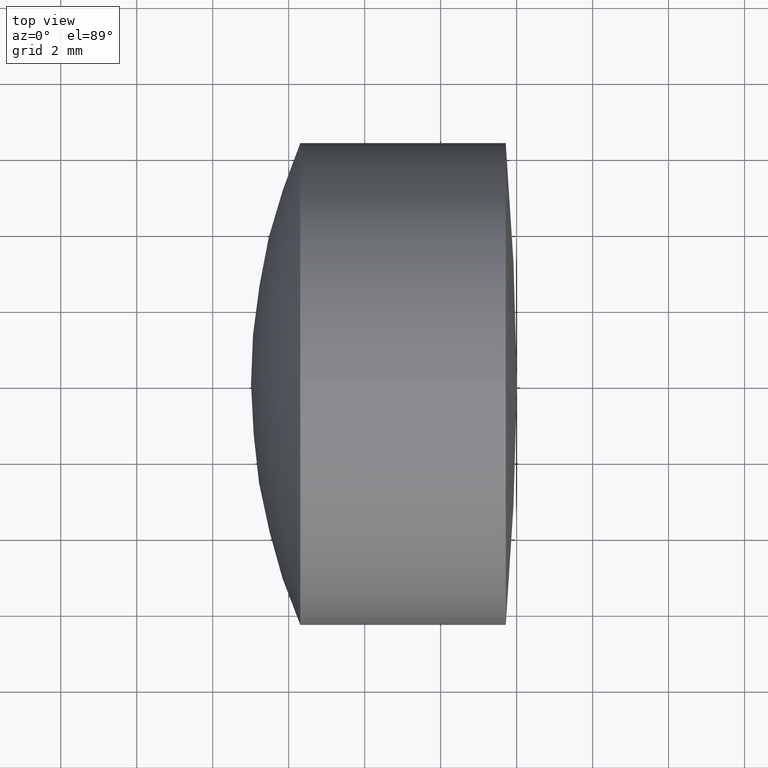
[diagram: clean part render]
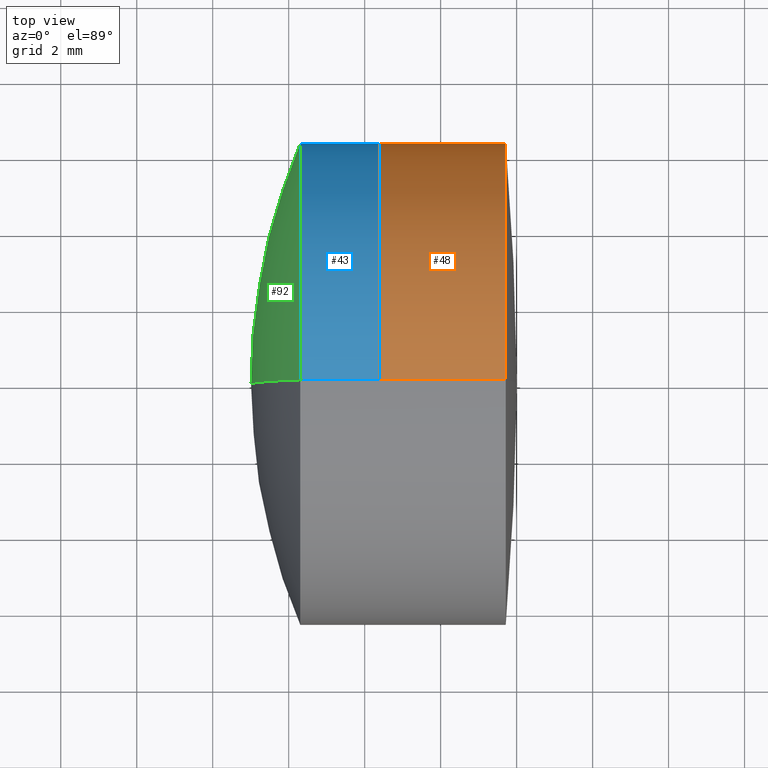
[diagram: same view with three faces highlighted in distinct colors, each labeled with its STEP entity id]
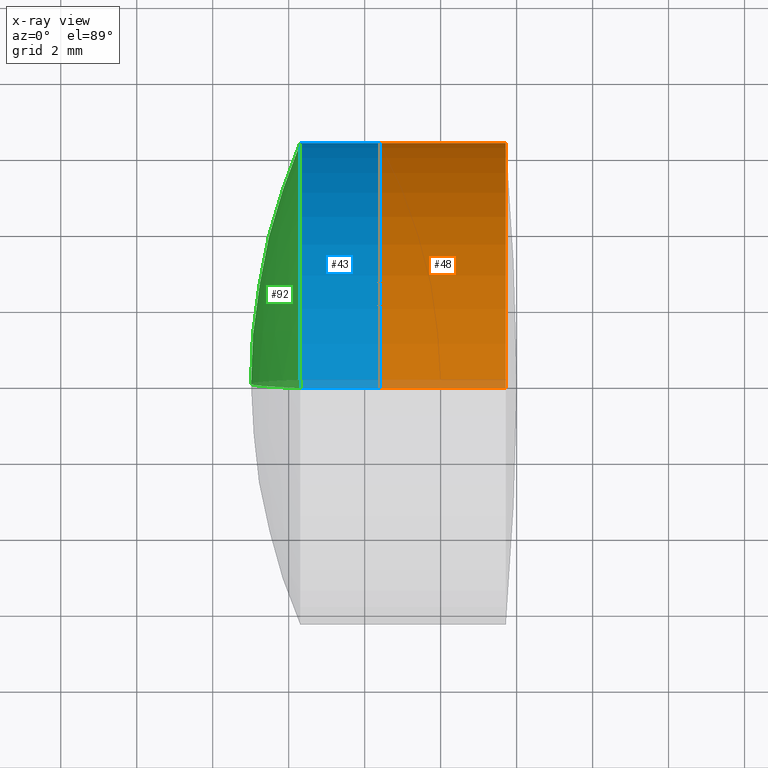
[diagram: x-ray of the same camera — body ghosted, the three highlighted faces saturated]
A machine part, top view with three faces highlighted in distinct colors.
The next image is the same camera in x-ray (body ghosted, the three faces saturated) — at least one of them is partly hidden behind the body in this view.
Their STEP definitions:

[orange] entity #48 — the highlighted cylindrical surface (partial cylindrical patch) has radius 6.35 mm, axis along (-1, -0, -0).
#4 = DIRECTION ( 'NONE',  ( -1.000000000000000000, -0.0000000000000000000, -0.0000000000000000000 ) ) ;
#18 = CARTESIAN_POINT ( 'NONE',  ( 275.7139967868120000, 0.0000000000000000000, 0.0000000000000000000 ) ) ;
#19 = DIRECTION ( 'NONE',  ( 0.0000000000000000000, 0.0000000000000000000, 1.000000000000000000 ) ) ;
#20 = ORIENTED_EDGE ( 'NONE', *, *, #53, .T. ) ;
#37 = LINE ( 'NONE', #130, #73 ) ;
#39 = VERTEX_POINT ( 'NONE', #184 ) ;
#44 = DIRECTION ( 'NONE',  ( -1.000000000000000000, -0.0000000000000000000, -0.0000000000000000000 ) ) ;
#48 = ADVANCED_FACE ( 'NONE', ( #199 ), #131, .T. ) ;
#53 = EDGE_CURVE ( 'NONE', #122, #132, #98, .T. ) ;
#57 = CARTESIAN_POINT ( 'NONE',  ( -0.5519199926577972300, 7.776507174585686200E-016, -6.349999999999994300 ) ) ;
#66 = VERTEX_POINT ( 'NONE', #179 ) ;
#70 = DIRECTION ( 'NONE',  ( -1.000000000000000000, -0.0000000000000000000, -0.0000000000000000000 ) ) ;
#73 = VECTOR ( 'NONE', #114, 1000.000000000000000 ) ;
#82 = EDGE_CURVE ( 'NONE', #66, #39, #37, .T. ) ;
#96 = AXIS2_PLACEMENT_3D ( 'NONE', #166, #4, #193 ) ;
#98 = LINE ( 'NONE', #57, #287 ) ;
#114 = DIRECTION ( 'NONE',  ( -1.000000000000000000, -0.0000000000000000000, -0.0000000000000000000 ) ) ;
#122 = VERTEX_POINT ( 'NONE', #206 ) ;
#130 = CARTESIAN_POINT ( 'NONE',  ( -0.5519199926577972300, 0.0000000000000000000, 6.349999999999994300 ) ) ;
#131 = CYLINDRICAL_SURFACE ( 'NONE', #212, 6.349999999999994300 ) ;
#132 = VERTEX_POINT ( 'NONE', #278 ) ;
#136 = AXIS2_PLACEMENT_3D ( 'NONE', #18, #142, #318 ) ;
#137 = EDGE_LOOP ( 'NONE', ( #230, #20, #231, #172 ) ) ;
#142 = DIRECTION ( 'NONE',  ( -1.000000000000000000, -0.0000000000000000000, -0.0000000000000000000 ) ) ;
#166 = CARTESIAN_POINT ( 'NONE',  ( 272.3951664723072100, 0.0000000000000000000, 0.0000000000000000000 ) ) ;
#172 = ORIENTED_EDGE ( 'NONE', *, *, #82, .F. ) ;
#179 = CARTESIAN_POINT ( 'NONE',  ( 275.7139967868120000, 0.0000000000000000000, 6.349999999999993400 ) ) ;
#184 = CARTESIAN_POINT ( 'NONE',  ( 272.3951664723072100, 0.0000000000000000000, 6.349999999999992500 ) ) ;
#190 = CIRCLE ( 'NONE', #136, 6.349999999999993400 ) ;
#193 = DIRECTION ( 'NONE',  ( 0.0000000000000000000, 0.0000000000000000000, 1.000000000000000000 ) ) ;
#199 = FACE_OUTER_BOUND ( 'NONE', #137, .T. ) ;
#206 = CARTESIAN_POINT ( 'NONE',  ( 275.7139967868120000, 7.776507174585685300E-016, -6.349999999999993400 ) ) ;
#212 = AXIS2_PLACEMENT_3D ( 'NONE', #320, #44, #19 ) ;
#230 = ORIENTED_EDGE ( 'NONE', *, *, #235, .T. ) ;
#231 = ORIENTED_EDGE ( 'NONE', *, *, #327, .F. ) ;
#235 = EDGE_CURVE ( 'NONE', #66, #122, #190, .T. ) ;
#278 = CARTESIAN_POINT ( 'NONE',  ( 272.3951664723072100, 7.776507174585683300E-016, -6.349999999999996100 ) ) ;
#287 = VECTOR ( 'NONE', #70, 1000.000000000000000 ) ;
#318 = DIRECTION ( 'NONE',  ( 0.0000000000000000000, 0.0000000000000000000, 1.000000000000000000 ) ) ;
#320 = CARTESIAN_POINT ( 'NONE',  ( -0.5519199926577972300, 0.0000000000000000000, 0.0000000000000000000 ) ) ;
#321 = CIRCLE ( 'NONE', #96, 6.349999999999996100 ) ;
#327 = EDGE_CURVE ( 'NONE', #39, #132, #321, .T. ) ;

[blue] entity #43 — the highlighted cylindrical surface (partial cylindrical patch) has radius 6.35 mm, axis along (-1, -0, -0).
#7 = CIRCLE ( 'NONE', #198, 6.349999999999996100 ) ;
#8 = ORIENTED_EDGE ( 'NONE', *, *, #154, .F. ) ;
#15 = CARTESIAN_POINT ( 'NONE',  ( 124.5233095260452400, 0.0000000000000000000, 0.0000000000000000000 ) ) ;
#35 = VECTOR ( 'NONE', #88, 1000.000000000000000 ) ;
#43 = ADVANCED_FACE ( 'NONE', ( #121 ), #83, .T. ) ;
#60 = EDGE_LOOP ( 'NONE', ( #223, #140, #147, #8 ) ) ;
#69 = CARTESIAN_POINT ( 'NONE',  ( 270.3053497044990600, 7.776507174585691200E-016, -6.350000000000001400 ) ) ;
#75 = CARTESIAN_POINT ( 'NONE',  ( 124.5233095260452400, 7.776507174585689200E-016, -6.349999999999996100 ) ) ;
#79 = VERTEX_POINT ( 'NONE', #113 ) ;
#83 = CYLINDRICAL_SURFACE ( 'NONE', #202, 6.349999999999996100 ) ;
#88 = DIRECTION ( 'NONE',  ( -1.000000000000000000, -0.0000000000000000000, -0.0000000000000000000 ) ) ;
#94 = VERTEX_POINT ( 'NONE', #69 ) ;
#111 = EDGE_CURVE ( 'NONE', #79, #94, #7, .T. ) ;
#113 = CARTESIAN_POINT ( 'NONE',  ( 270.3053497044990600, 0.0000000000000000000, 6.349999999999997900 ) ) ;
#119 = CARTESIAN_POINT ( 'NONE',  ( 124.5233095260452400, 0.0000000000000000000, 6.349999999999996100 ) ) ;
#120 = CARTESIAN_POINT ( 'NONE',  ( 272.3951664723072100, 0.0000000000000000000, 6.349999999999996100 ) ) ;
#121 = FACE_OUTER_BOUND ( 'NONE', #60, .T. ) ;
#126 = DIRECTION ( 'NONE',  ( -1.000000000000000000, -0.0000000000000000000, -0.0000000000000000000 ) ) ;
#140 = ORIENTED_EDGE ( 'NONE', *, *, #295, .T. ) ;
#144 = VERTEX_POINT ( 'NONE', #208 ) ;
#147 = ORIENTED_EDGE ( 'NONE', *, *, #111, .F. ) ;
#149 = CARTESIAN_POINT ( 'NONE',  ( 270.3053497044990600, 0.0000000000000000000, 0.0000000000000000000 ) ) ;
#154 = EDGE_CURVE ( 'NONE', #167, #79, #314, .T. ) ;
#167 = VERTEX_POINT ( 'NONE', #120 ) ;
#171 = DIRECTION ( 'NONE',  ( 0.0000000000000000000, 0.0000000000000000000, 1.000000000000000000 ) ) ;
#191 = CARTESIAN_POINT ( 'NONE',  ( 272.3951664723072100, 0.0000000000000000000, 0.0000000000000000000 ) ) ;
#194 = VECTOR ( 'NONE', #259, 1000.000000000000000 ) ;
#198 = AXIS2_PLACEMENT_3D ( 'NONE', #149, #263, #213 ) ;
#202 = AXIS2_PLACEMENT_3D ( 'NONE', #15, #215, #171 ) ;
#208 = CARTESIAN_POINT ( 'NONE',  ( 272.3951664723072100, 7.776507174585689200E-016, -6.349999999999996100 ) ) ;
#211 = CIRCLE ( 'NONE', #242, 6.349999999999996100 ) ;
#213 = DIRECTION ( 'NONE',  ( 0.0000000000000000000, 0.0000000000000000000, 1.000000000000000000 ) ) ;
#215 = DIRECTION ( 'NONE',  ( -1.000000000000000000, -0.0000000000000000000, -0.0000000000000000000 ) ) ;
#223 = ORIENTED_EDGE ( 'NONE', *, *, #339, .T. ) ;
#241 = DIRECTION ( 'NONE',  ( 0.0000000000000000000, 0.0000000000000000000, 1.000000000000000000 ) ) ;
#242 = AXIS2_PLACEMENT_3D ( 'NONE', #191, #126, #241 ) ;
#255 = LINE ( 'NONE', #75, #194 ) ;
#259 = DIRECTION ( 'NONE',  ( -1.000000000000000000, -0.0000000000000000000, -0.0000000000000000000 ) ) ;
#263 = DIRECTION ( 'NONE',  ( -1.000000000000000000, -0.0000000000000000000, -0.0000000000000000000 ) ) ;
#295 = EDGE_CURVE ( 'NONE', #144, #94, #255, .T. ) ;
#314 = LINE ( 'NONE', #119, #35 ) ;
#339 = EDGE_CURVE ( 'NONE', #167, #144, #211, .T. ) ;

[green] entity #92 — the highlighted spherical surface has radius 16.2 mm.
#7 = CIRCLE ( 'NONE', #198, 6.349999999999996100 ) ;
#9 = EDGE_CURVE ( 'NONE', #79, #324, #100, .T. ) ;
#25 = AXIS2_PLACEMENT_3D ( 'NONE', #95, #123, #283 ) ;
#27 = CARTESIAN_POINT ( 'NONE',  ( 269.0089566504702200, 0.0000000000000000000, -2.334349788578312700E-015 ) ) ;
#32 = CARTESIAN_POINT ( 'NONE',  ( 285.2089566504702100, 0.0000000000000000000, -3.326313695887668000E-015 ) ) ;
#54 = FACE_OUTER_BOUND ( 'NONE', #288, .T. ) ;
#58 = ORIENTED_EDGE ( 'NONE', *, *, #267, .T. ) ;
#63 = SPHERICAL_SURFACE ( 'NONE', #25, 16.19999999999998500 ) ;
#69 = CARTESIAN_POINT ( 'NONE',  ( 270.3053497044990600, 7.776507174585691200E-016, -6.350000000000001400 ) ) ;
#79 = VERTEX_POINT ( 'NONE', #113 ) ;
#91 = AXIS2_PLACEMENT_3D ( 'NONE', #260, #312, #310 ) ;
#92 = ADVANCED_FACE ( 'NONE', ( #54 ), #63, .T. ) ;
#94 = VERTEX_POINT ( 'NONE', #69 ) ;
#95 = CARTESIAN_POINT ( 'NONE',  ( 285.2089566504702100, 0.0000000000000000000, -3.326313695887668000E-015 ) ) ;
#100 = CIRCLE ( 'NONE', #91, 16.19999999999998500 ) ;
#111 = EDGE_CURVE ( 'NONE', #79, #94, #7, .T. ) ;
#113 = CARTESIAN_POINT ( 'NONE',  ( 270.3053497044990600, 0.0000000000000000000, 6.349999999999997900 ) ) ;
#123 = DIRECTION ( 'NONE',  ( 0.0000000000000000000, 1.000000000000000000, 0.0000000000000000000 ) ) ;
#149 = CARTESIAN_POINT ( 'NONE',  ( 270.3053497044990600, 0.0000000000000000000, 0.0000000000000000000 ) ) ;
#173 = AXIS2_PLACEMENT_3D ( 'NONE', #32, #176, #308 ) ;
#176 = DIRECTION ( 'NONE',  ( -0.0000000000000000000, 1.000000000000000000, 1.224646799147353200E-016 ) ) ;
#198 = AXIS2_PLACEMENT_3D ( 'NONE', #149, #263, #213 ) ;
#213 = DIRECTION ( 'NONE',  ( 0.0000000000000000000, 0.0000000000000000000, 1.000000000000000000 ) ) ;
#251 = ORIENTED_EDGE ( 'NONE', *, *, #9, .F. ) ;
#260 = CARTESIAN_POINT ( 'NONE',  ( 285.2089566504702100, 0.0000000000000000000, -3.326313695887668000E-015 ) ) ;
#263 = DIRECTION ( 'NONE',  ( -1.000000000000000000, -0.0000000000000000000, -0.0000000000000000000 ) ) ;
#267 = EDGE_CURVE ( 'NONE', #94, #324, #303, .T. ) ;
#283 = DIRECTION ( 'NONE',  ( 0.0000000000000000000, 0.0000000000000000000, 1.000000000000000000 ) ) ;
#288 = EDGE_LOOP ( 'NONE', ( #330, #58, #251 ) ) ;
#303 = CIRCLE ( 'NONE', #173, 16.19999999999998500 ) ;
#308 = DIRECTION ( 'NONE',  ( 0.0000000000000000000, -1.224646799147353200E-016, 1.000000000000000000 ) ) ;
#310 = DIRECTION ( 'NONE',  ( 0.0000000000000000000, 0.0000000000000000000, -1.000000000000000000 ) ) ;
#312 = DIRECTION ( 'NONE',  ( 0.0000000000000000000, -1.000000000000000000, 0.0000000000000000000 ) ) ;
#324 = VERTEX_POINT ( 'NONE', #27 ) ;
#330 = ORIENTED_EDGE ( 'NONE', *, *, #111, .T. ) ;